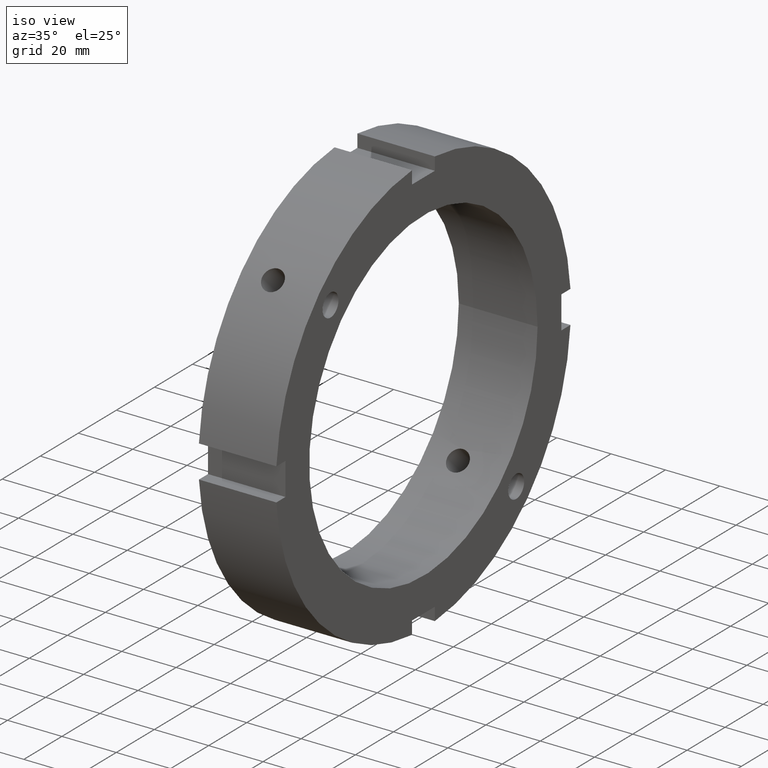
[diagram: clean part render]
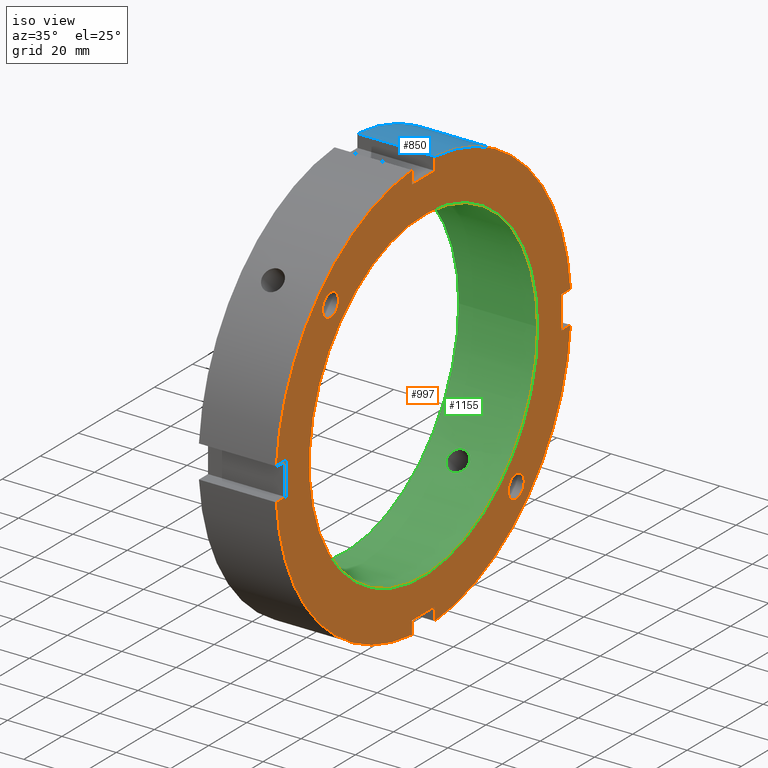
[diagram: same view with three faces highlighted in distinct colors, each labeled with its STEP entity id]
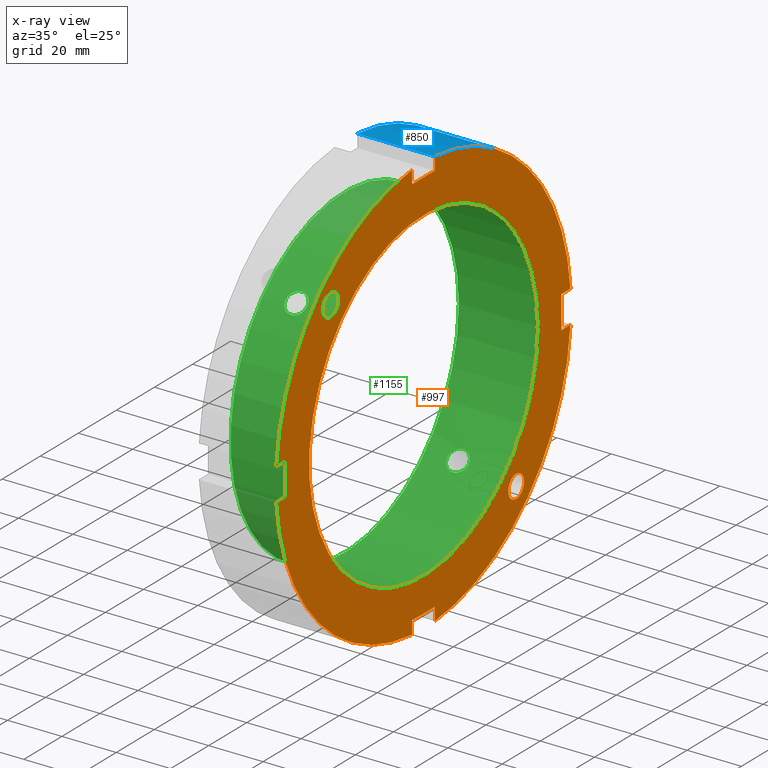
[diagram: x-ray of the same camera — body ghosted, the three highlighted faces saturated]
A machine part, iso view with three faces highlighted in distinct colors.
The next image is the same camera in x-ray (body ghosted, the three faces saturated) — at least one of them is partly hidden behind the body in this view.
Their STEP definitions:

[orange] entity #997 — the highlighted planar face has unit normal (1, 0, 0).
#73=CARTESIAN_POINT('',(28.999999999999986,-52.978367901871763,48.790367901871797));
#74=VERTEX_POINT('',#73);
#75=CARTESIAN_POINT('',(28.999999999999986,-48.790367901871761,48.790367901871797));
#76=DIRECTION('',(-1.0,0.0,0.0));
#77=DIRECTION('',(0.0,-1.0,0.0));
#78=AXIS2_PLACEMENT_3D('',#75,#76,#77);
#79=CIRCLE('',#78,4.188);
#80=EDGE_CURVE('',#74,#74,#79,.T.);
#406=CARTESIAN_POINT('',(28.999999999999986,48.79036790187179,-52.978367901871771));
#407=VERTEX_POINT('',#406);
#408=CARTESIAN_POINT('',(28.999999999999986,48.79036790187179,-48.790367901871775));
#409=DIRECTION('',(-1.0,0.0,0.0));
#410=DIRECTION('',(0.0,0.0,-1.0));
#411=AXIS2_PLACEMENT_3D('',#408,#409,#410);
#412=CIRCLE('',#411,4.188);
#413=EDGE_CURVE('',#407,#407,#412,.T.);
#527=CARTESIAN_POINT('',(28.999999999999986,-6.00000000000001,-72.5));
#528=VERTEX_POINT('',#527);
#535=CARTESIAN_POINT('',(28.999999999999986,-6.000000000000011,-77.26739286400182));
#536=VERTEX_POINT('',#535);
#537=CARTESIAN_POINT('',(28.999999999999986,-6.000000000000017,-77.26739286400182));
#538=DIRECTION('',(0.0,0.0,1.0));
#539=VECTOR('',#538,4.76739286400182);
#540=LINE('',#537,#539);
#541=EDGE_CURVE('',#536,#528,#540,.T.);
#567=CARTESIAN_POINT('',(28.999999999999986,5.999999999999982,-77.26739286400182));
#568=VERTEX_POINT('',#567);
#575=CARTESIAN_POINT('',(28.999999999999986,5.999999999999983,-72.5));
#576=VERTEX_POINT('',#575);
#577=CARTESIAN_POINT('',(28.999999999999986,5.999999999999981,-72.5));
#578=DIRECTION('',(0.0,0.0,-1.0));
#579=VECTOR('',#578,4.76739286400182);
#580=LINE('',#577,#579);
#581=EDGE_CURVE('',#576,#568,#580,.T.);
#604=CARTESIAN_POINT('',(28.999999999999986,-6.000000000000007,-72.499999999999986));
#605=DIRECTION('',(0.0,1.0,0.0));
#606=VECTOR('',#605,11.999999999999993);
#607=LINE('',#604,#606);
#608=EDGE_CURVE('',#528,#576,#607,.T.);
#629=CARTESIAN_POINT('',(28.999999999999986,-72.5,6.000000000000005));
#630=VERTEX_POINT('',#629);
#637=CARTESIAN_POINT('',(28.999999999999986,-77.26739286400182,6.000000000000005));
#638=VERTEX_POINT('',#637);
#639=CARTESIAN_POINT('',(28.999999999999986,-77.26739286400182,6.000000000000005));
#640=DIRECTION('',(0.0,1.0,0.0));
#641=VECTOR('',#640,4.76739286400182);
#642=LINE('',#639,#641);
#643=EDGE_CURVE('',#638,#630,#642,.T.);
#669=CARTESIAN_POINT('',(28.999999999999986,-77.26739286400182,-5.999999999999988));
#670=VERTEX_POINT('',#669);
#677=CARTESIAN_POINT('',(28.999999999999986,-72.5,-5.999999999999988));
#678=VERTEX_POINT('',#677);
#679=CARTESIAN_POINT('',(28.999999999999986,-72.5,-5.999999999999989));
#680=DIRECTION('',(0.0,-1.0,0.0));
#681=VECTOR('',#680,4.76739286400182);
#682=LINE('',#679,#681);
#683=EDGE_CURVE('',#678,#670,#682,.T.);
#706=CARTESIAN_POINT('',(28.999999999999986,-72.5,6.000000000000004));
#707=DIRECTION('',(0.0,0.0,-1.0));
#708=VECTOR('',#707,11.999999999999993);
#709=LINE('',#706,#708);
#710=EDGE_CURVE('',#630,#678,#709,.T.);
#731=CARTESIAN_POINT('',(28.999999999999986,6.000000000000001,72.5));
#732=VERTEX_POINT('',#731);
#739=CARTESIAN_POINT('',(28.999999999999986,6.000000000000001,77.26739286400182));
#740=VERTEX_POINT('',#739);
#741=CARTESIAN_POINT('',(28.999999999999986,5.999999999999999,77.26739286400182));
#742=DIRECTION('',(0.0,0.0,-1.0));
#743=VECTOR('',#742,4.76739286400182);
#744=LINE('',#741,#743);
#745=EDGE_CURVE('',#740,#732,#744,.T.);
#771=CARTESIAN_POINT('',(28.999999999999986,-5.999999999999992,77.26739286400182));
#772=VERTEX_POINT('',#771);
#779=CARTESIAN_POINT('',(28.999999999999986,-5.999999999999992,72.5));
#780=VERTEX_POINT('',#779);
#781=CARTESIAN_POINT('',(28.999999999999986,-5.999999999999999,72.5));
#782=DIRECTION('',(0.0,0.0,1.0));
#783=VECTOR('',#782,4.76739286400182);
#784=LINE('',#781,#783);
#785=EDGE_CURVE('',#780,#772,#784,.T.);
#808=CARTESIAN_POINT('',(28.999999999999986,6.0,72.5));
#809=DIRECTION('',(0.0,-1.0,0.0));
#810=VECTOR('',#809,11.999999999999993);
#811=LINE('',#808,#810);
#812=EDGE_CURVE('',#732,#780,#811,.T.);
#824=CARTESIAN_POINT('',(28.999999999999986,77.26739286400182,5.999999999999996));
#825=VERTEX_POINT('',#824);
#826=CARTESIAN_POINT('',(28.999999999999986,0.0,0.0));
#827=DIRECTION('',(1.0,0.0,0.0));
#828=DIRECTION('',(0.0,1.0,0.0));
#829=AXIS2_PLACEMENT_3D('',#826,#827,#828);
#830=CIRCLE('',#829,77.5);
#831=EDGE_CURVE('',#825,#740,#830,.T.);
#857=CARTESIAN_POINT('',(28.999999999999986,0.0,0.0));
#858=DIRECTION('',(1.0,0.0,0.0));
#859=DIRECTION('',(0.0,1.0,0.0));
#860=AXIS2_PLACEMENT_3D('',#857,#858,#859);
#861=CIRCLE('',#860,77.5);
#862=EDGE_CURVE('',#772,#638,#861,.T.);
#893=CARTESIAN_POINT('',(28.999999999999986,77.26739286400182,-5.999999999999996));
#894=VERTEX_POINT('',#893);
#901=CARTESIAN_POINT('',(28.999999999999986,0.0,0.0));
#902=DIRECTION('',(1.0,0.0,0.0));
#903=DIRECTION('',(0.0,1.0,0.0));
#904=AXIS2_PLACEMENT_3D('',#901,#902,#903);
#905=CIRCLE('',#904,77.5);
#906=EDGE_CURVE('',#568,#894,#905,.T.);
#920=CARTESIAN_POINT('',(28.999999999999986,0.0,0.0));
#921=DIRECTION('',(1.0,0.0,0.0));
#922=DIRECTION('',(0.0,1.0,0.0));
#923=AXIS2_PLACEMENT_3D('',#920,#921,#922);
#924=CIRCLE('',#923,77.5);
#925=EDGE_CURVE('',#670,#536,#924,.T.);
#938=CARTESIAN_POINT('',(28.999999999999986,68.75,0.0));
#939=DIRECTION('',(1.0,0.0,0.0));
#940=DIRECTION('',(0.0,0.0,-1.0));
#941=AXIS2_PLACEMENT_3D('',#938,#939,#940);
#942=PLANE('',#941);
#943=ORIENTED_EDGE('',*,*,#541,.T.);
#944=ORIENTED_EDGE('',*,*,#608,.T.);
#945=ORIENTED_EDGE('',*,*,#581,.T.);
#946=ORIENTED_EDGE('',*,*,#906,.T.);
#947=CARTESIAN_POINT('',(28.999999999999986,72.5,-5.999999999999996));
#948=VERTEX_POINT('',#947);
#949=CARTESIAN_POINT('',(28.999999999999986,77.26739286400182,-5.999999999999996));
#950=DIRECTION('',(0.0,-1.0,0.0));
#951=VECTOR('',#950,4.76739286400182);
#952=LINE('',#949,#951);
#953=EDGE_CURVE('',#894,#948,#952,.T.);
#954=ORIENTED_EDGE('',*,*,#953,.T.);
#955=CARTESIAN_POINT('',(28.999999999999986,72.5,5.999999999999996));
#956=VERTEX_POINT('',#955);
#957=CARTESIAN_POINT('',(28.999999999999986,72.5,-5.999999999999996));
#958=DIRECTION('',(0.0,0.0,1.0));
#959=VECTOR('',#958,11.999999999999993);
#960=LINE('',#957,#959);
#961=EDGE_CURVE('',#948,#956,#960,.T.);
#962=ORIENTED_EDGE('',*,*,#961,.T.);
#963=CARTESIAN_POINT('',(28.999999999999986,72.5,5.999999999999996));
#964=DIRECTION('',(0.0,1.0,0.0));
#965=VECTOR('',#964,4.76739286400182);
#966=LINE('',#963,#965);
#967=EDGE_CURVE('',#956,#825,#966,.T.);
#968=ORIENTED_EDGE('',*,*,#967,.T.);
#969=ORIENTED_EDGE('',*,*,#831,.T.);
#970=ORIENTED_EDGE('',*,*,#745,.T.);
#971=ORIENTED_EDGE('',*,*,#812,.T.);
#972=ORIENTED_EDGE('',*,*,#785,.T.);
#973=ORIENTED_EDGE('',*,*,#862,.T.);
#974=ORIENTED_EDGE('',*,*,#643,.T.);
#975=ORIENTED_EDGE('',*,*,#710,.T.);
#976=ORIENTED_EDGE('',*,*,#683,.T.);
#977=ORIENTED_EDGE('',*,*,#925,.T.);
#978=EDGE_LOOP('',(#943,#944,#945,#946,#954,#962,#968,#969,#970,#971,#972,#973,#974,#975,#976,#977));
#979=FACE_OUTER_BOUND('',#978,.T.);
#980=ORIENTED_EDGE('',*,*,#80,.T.);
#981=EDGE_LOOP('',(#980));
#982=FACE_BOUND('',#981,.T.);
#983=ORIENTED_EDGE('',*,*,#413,.T.);
#984=EDGE_LOOP('',(#983));
#985=FACE_BOUND('',#984,.T.);
#986=CARTESIAN_POINT('',(28.999999999999989,60.0,0.0));
#987=VERTEX_POINT('',#986);
#988=CARTESIAN_POINT('',(28.999999999999989,0.0,0.0));
#989=DIRECTION('',(1.0,0.0,0.0));
#990=DIRECTION('',(0.0,1.0,0.0));
#991=AXIS2_PLACEMENT_3D('',#988,#989,#990);
#992=CIRCLE('',#991,60.0);
#993=EDGE_CURVE('',#987,#987,#992,.T.);
#994=ORIENTED_EDGE('',*,*,#993,.F.);
#995=EDGE_LOOP('',(#994));
#996=FACE_BOUND('',#995,.T.);
#997=ADVANCED_FACE('',(#979,#982,#985,#996),#942,.T.);

[blue] entity #850 — the highlighted cylindrical surface (partial cylindrical patch) has radius 77.5 mm, axis along (1, 0, 0).
#723=CARTESIAN_POINT('',(0.49999999999998,6.000000000000001,77.26739286400182));
#724=VERTEX_POINT('',#723);
#739=CARTESIAN_POINT('',(28.999999999999986,6.000000000000001,77.26739286400182));
#740=VERTEX_POINT('',#739);
#747=CARTESIAN_POINT('',(0.49999999999998,6.000000000000001,77.26739286400182));
#748=DIRECTION('',(1.0,0.0,0.0));
#749=VECTOR('',#748,28.500000000000007);
#750=LINE('',#747,#749);
#751=EDGE_CURVE('',#724,#740,#750,.T.);
#818=CARTESIAN_POINT('',(14.749999999999982,0.0,0.0));
#819=DIRECTION('',(1.0,0.0,0.0));
#820=DIRECTION('',(0.0,1.0,0.0));
#821=AXIS2_PLACEMENT_3D('',#818,#819,#820);
#822=CYLINDRICAL_SURFACE('',#821,77.5);
#823=ORIENTED_EDGE('',*,*,#751,.T.);
#824=CARTESIAN_POINT('',(28.999999999999986,77.26739286400182,5.999999999999996));
#825=VERTEX_POINT('',#824);
#826=CARTESIAN_POINT('',(28.999999999999986,0.0,0.0));
#827=DIRECTION('',(1.0,0.0,0.0));
#828=DIRECTION('',(0.0,1.0,0.0));
#829=AXIS2_PLACEMENT_3D('',#826,#827,#828);
#830=CIRCLE('',#829,77.5);
#831=EDGE_CURVE('',#825,#740,#830,.T.);
#832=ORIENTED_EDGE('',*,*,#831,.F.);
#833=CARTESIAN_POINT('',(0.49999999999998,77.26739286400182,5.999999999999996));
#834=VERTEX_POINT('',#833);
#835=CARTESIAN_POINT('',(28.999999999999986,77.26739286400182,5.999999999999996));
#836=DIRECTION('',(-1.0,0.0,0.0));
#837=VECTOR('',#836,28.500000000000007);
#838=LINE('',#835,#837);
#839=EDGE_CURVE('',#825,#834,#838,.T.);
#840=ORIENTED_EDGE('',*,*,#839,.T.);
#841=CARTESIAN_POINT('',(0.49999999999998,0.0,0.0));
#842=DIRECTION('',(1.0,0.0,0.0));
#843=DIRECTION('',(0.0,1.0,0.0));
#844=AXIS2_PLACEMENT_3D('',#841,#842,#843);
#845=CIRCLE('',#844,77.5);
#846=EDGE_CURVE('',#834,#724,#845,.T.);
#847=ORIENTED_EDGE('',*,*,#846,.T.);
#848=EDGE_LOOP('',(#823,#832,#840,#847));
#849=FACE_OUTER_BOUND('',#848,.T.);
#850=ADVANCED_FACE('',(#849),#822,.T.);

[green] entity #1155 — the highlighted cylindrical surface (bore or boss wall) has radius 60 mm, axis along (1, 0, 0).
#248=CARTESIAN_POINT('',(11.999999999999989,-45.127440211352543,39.541296639978832));
#249=VERTEX_POINT('',#248);
#250=CARTESIAN_POINT('',(11.999999999999989,-45.127440211352535,39.541296639978839));
#251=CARTESIAN_POINT('',(12.496124904619874,-45.127440211352535,39.541296639978839));
#252=CARTESIAN_POINT('',(13.025220777032892,-45.062118791753718,39.616237008436613));
#253=CARTESIAN_POINT('',(13.998376636610645,-44.794414653127788,39.918682349471162));
#254=CARTESIAN_POINT('',(14.44244881339908,-44.591786650026023,40.14593088733713));
#255=CARTESIAN_POINT('',(15.143694534990054,-44.119038767636752,40.664894214977934));
#256=CARTESIAN_POINT('',(15.447663323002736,-43.81733086790021,40.991199351325776));
#257=CARTESIAN_POINT('',(15.850820023005012,-43.146549486839305,41.696668644206376));
#258=CARTESIAN_POINT('',(15.949999999999989,-42.777219932459474,42.075593809926218));
#259=CARTESIAN_POINT('',(15.949999999999989,-42.07559380992619,42.777219932459531));
#260=CARTESIAN_POINT('',(15.850820023005003,-41.696668644206333,43.146549486839341));
#261=CARTESIAN_POINT('',(15.44766332300272,-40.991199351325719,43.817330867900253));
#262=CARTESIAN_POINT('',(15.143694534990054,-40.664894214977892,44.119038767636809));
#263=CARTESIAN_POINT('',(14.44244881339908,-40.145930887337087,44.591786650026052));
#264=CARTESIAN_POINT('',(13.998376636610644,-39.918682349471119,44.794414653127816));
#265=CARTESIAN_POINT('',(13.02522077703289,-39.616237008436578,45.062118791753747));
#266=CARTESIAN_POINT('',(12.496124904619874,-39.54129663997881,45.127440211352578));
#267=CARTESIAN_POINT('',(11.503875095380105,-39.54129663997881,45.127440211352578));
#268=CARTESIAN_POINT('',(10.974779222967094,-39.616237008436578,45.062118791753747));
#269=CARTESIAN_POINT('',(10.00162336338934,-39.918682349471119,44.794414653127816));
#270=CARTESIAN_POINT('',(9.557551186600897,-40.145930887337087,44.591786650026052));
#271=CARTESIAN_POINT('',(8.856305465009921,-40.664894214977892,44.119038767636809));
#272=CARTESIAN_POINT('',(8.552336676997255,-40.991199351325719,43.817330867900253));
#273=CARTESIAN_POINT('',(8.149179976994972,-41.696668644206333,43.146549486839341));
#274=CARTESIAN_POINT('',(8.049999999999988,-42.07559380992619,42.777219932459531));
#275=CARTESIAN_POINT('',(8.049999999999988,-42.777219932459474,42.075593809926218));
#276=CARTESIAN_POINT('',(8.149179976994965,-43.146549486839305,41.696668644206376));
#277=CARTESIAN_POINT('',(8.552336676997241,-43.81733086790021,40.991199351325776));
#278=CARTESIAN_POINT('',(8.856305465009926,-44.119038767636752,40.664894214977934));
#279=CARTESIAN_POINT('',(9.557551186600898,-44.591786650026023,40.14593088733713));
#280=CARTESIAN_POINT('',(10.001623363389335,-44.794414653127788,39.918682349471162));
#281=CARTESIAN_POINT('',(10.97477922296709,-45.062118791753718,39.616237008436613));
#282=CARTESIAN_POINT('',(11.503875095380103,-45.127440211352535,39.541296639978839));
#283=CARTESIAN_POINT('',(11.999999999999989,-45.127440211352535,39.541296639978839));
#284=B_SPLINE_CURVE_WITH_KNOTS('',3,(#250,#251,#252,#253,#254,#255,#256,#257,#258,#259,#260,#261,#262,#263,#264,#265,#266,#267,#268,#269,#270,#271,#272,#273,#274,#275,#276,#277,#278,#279,#280,#281,#282,#283),.UNSPECIFIED.,.T.,.U.,(4,2,2,2,2,2,2,2,2,2,2,2,2,2,2,2,4),(0.0,0.148837471385965,0.297674942771931,0.446512319502207,0.595349696232482,0.744187072962758,0.893024449693034,1.041861921078999,1.190699392464964,1.339536863850929,1.488374335236895,1.63721171196717,1.786049088697446,1.934886465427722,2.083723842157998,2.232561313543963,2.381398784929928),.UNSPECIFIED.);
#285=EDGE_CURVE('',#249,#249,#284,.T.);
#470=CARTESIAN_POINT('',(11.999999999999989,39.541296639978825,-45.12744021135255));
#471=VERTEX_POINT('',#470);
#472=CARTESIAN_POINT('',(11.999999999999989,39.541296639978825,-45.12744021135255));
#473=CARTESIAN_POINT('',(11.503875095380103,39.541296639978825,-45.12744021135255));
#474=CARTESIAN_POINT('',(10.974779222967094,39.616237008436592,-45.062118791753733));
#475=CARTESIAN_POINT('',(10.00162336338934,39.91868234947114,-44.794414653127802));
#476=CARTESIAN_POINT('',(9.557551186600897,40.145930887337109,-44.591786650026037));
#477=CARTESIAN_POINT('',(8.856305465009921,40.664894214977913,-44.119038767636795));
#478=CARTESIAN_POINT('',(8.552336676997255,40.99119935132574,-43.817330867900239));
#479=CARTESIAN_POINT('',(8.149179976994972,41.696668644206348,-43.146549486839319));
#480=CARTESIAN_POINT('',(8.049999999999988,42.075593809926204,-42.777219932459509));
#481=CARTESIAN_POINT('',(8.049999999999988,42.777219932459488,-42.075593809926204));
#482=CARTESIAN_POINT('',(8.149179976994967,43.146549486839319,-41.696668644206355));
#483=CARTESIAN_POINT('',(8.552336676997243,43.817330867900225,-40.991199351325761));
#484=CARTESIAN_POINT('',(8.856305465009925,44.119038767636773,-40.66489421497792));
#485=CARTESIAN_POINT('',(9.557551186600895,44.591786650026037,-40.145930887337116));
#486=CARTESIAN_POINT('',(10.001623363389331,44.794414653127788,-39.91868234947114));
#487=CARTESIAN_POINT('',(10.974779222967081,45.062118791753718,-39.616237008436592));
#488=CARTESIAN_POINT('',(11.503875095380103,45.127440211352543,-39.541296639978832));
#489=CARTESIAN_POINT('',(12.496124904619874,45.127440211352543,-39.541296639978832));
#490=CARTESIAN_POINT('',(13.025220777032896,45.062118791753718,-39.616237008436592));
#491=CARTESIAN_POINT('',(13.998376636610645,44.794414653127788,-39.91868234947114));
#492=CARTESIAN_POINT('',(14.442448813399086,44.591786650026037,-40.145930887337116));
#493=CARTESIAN_POINT('',(15.143694534990058,44.119038767636773,-40.66489421497792));
#494=CARTESIAN_POINT('',(15.447663323002738,43.817330867900218,-40.991199351325761));
#495=CARTESIAN_POINT('',(15.85082002300501,43.146549486839312,-41.696668644206355));
#496=CARTESIAN_POINT('',(15.949999999999989,42.777219932459488,-42.075593809926204));
#497=CARTESIAN_POINT('',(15.949999999999989,42.075593809926204,-42.777219932459509));
#498=CARTESIAN_POINT('',(15.850820023005003,41.696668644206348,-43.146549486839319));
#499=CARTESIAN_POINT('',(15.44766332300272,40.99119935132574,-43.817330867900239));
#500=CARTESIAN_POINT('',(15.143694534990054,40.664894214977913,-44.119038767636795));
#501=CARTESIAN_POINT('',(14.44244881339908,40.145930887337109,-44.591786650026037));
#502=CARTESIAN_POINT('',(13.998376636610637,39.91868234947114,-44.794414653127802));
#503=CARTESIAN_POINT('',(13.025220777032885,39.616237008436592,-45.062118791753733));
#504=CARTESIAN_POINT('',(12.496124904619872,39.541296639978825,-45.12744021135255));
#505=CARTESIAN_POINT('',(11.999999999999986,39.541296639978825,-45.12744021135255));
#506=B_SPLINE_CURVE_WITH_KNOTS('',3,(#472,#473,#474,#475,#476,#477,#478,#479,#480,#481,#482,#483,#484,#485,#486,#487,#488,#489,#490,#491,#492,#493,#494,#495,#496,#497,#498,#499,#500,#501,#502,#503,#504,#505),.UNSPECIFIED.,.T.,.U.,(4,2,2,2,2,2,2,2,2,2,2,2,2,2,2,2,4),(0.0,0.148837471385965,0.297674942771931,0.446512319502206,0.595349696232482,0.744187072962758,0.893024449693033,1.041861921078999,1.190699392464964,1.339536863850929,1.488374335236895,1.63721171196717,1.786049088697446,1.934886465427722,2.083723842157998,2.232561313543963,2.381398784929928),.UNSPECIFIED.);
#507=EDGE_CURVE('',#471,#471,#506,.T.);
#986=CARTESIAN_POINT('',(28.999999999999989,60.0,0.0));
#987=VERTEX_POINT('',#986);
#988=CARTESIAN_POINT('',(28.999999999999989,0.0,0.0));
#989=DIRECTION('',(1.0,0.0,0.0));
#990=DIRECTION('',(0.0,1.0,0.0));
#991=AXIS2_PLACEMENT_3D('',#988,#989,#990);
#992=CIRCLE('',#991,60.0);
#993=EDGE_CURVE('',#987,#987,#992,.T.);
#1079=CARTESIAN_POINT('',(-1.747605E-014,60.0,0.0));
#1080=VERTEX_POINT('',#1079);
#1081=CARTESIAN_POINT('',(-1.747734E-014,0.0,0.0));
#1082=DIRECTION('',(1.0,0.0,0.0));
#1083=DIRECTION('',(0.0,1.0,0.0));
#1084=AXIS2_PLACEMENT_3D('',#1081,#1082,#1083);
#1085=CIRCLE('',#1084,60.0);
#1086=EDGE_CURVE('',#1080,#1080,#1085,.T.);
#1138=CARTESIAN_POINT('',(14.499999999999986,0.0,0.0));
#1139=DIRECTION('',(1.0,0.0,0.0));
#1140=DIRECTION('',(0.0,1.0,0.0));
#1141=AXIS2_PLACEMENT_3D('',#1138,#1139,#1140);
#1142=CYLINDRICAL_SURFACE('',#1141,60.0);
#1143=ORIENTED_EDGE('',*,*,#1086,.F.);
#1144=EDGE_LOOP('',(#1143));
#1145=FACE_OUTER_BOUND('',#1144,.T.);
#1146=ORIENTED_EDGE('',*,*,#285,.T.);
#1147=EDGE_LOOP('',(#1146));
#1148=FACE_BOUND('',#1147,.T.);
#1149=ORIENTED_EDGE('',*,*,#507,.T.);
#1150=EDGE_LOOP('',(#1149));
#1151=FACE_BOUND('',#1150,.T.);
#1152=ORIENTED_EDGE('',*,*,#993,.T.);
#1153=EDGE_LOOP('',(#1152));
#1154=FACE_BOUND('',#1153,.T.);
#1155=ADVANCED_FACE('',(#1145,#1148,#1151,#1154),#1142,.F.);